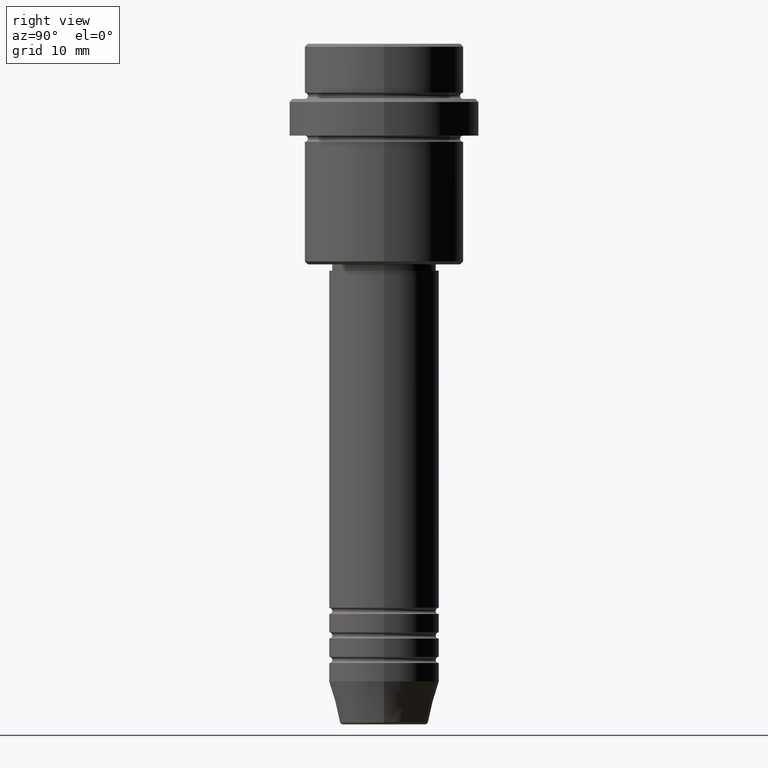
[diagram: clean part render]
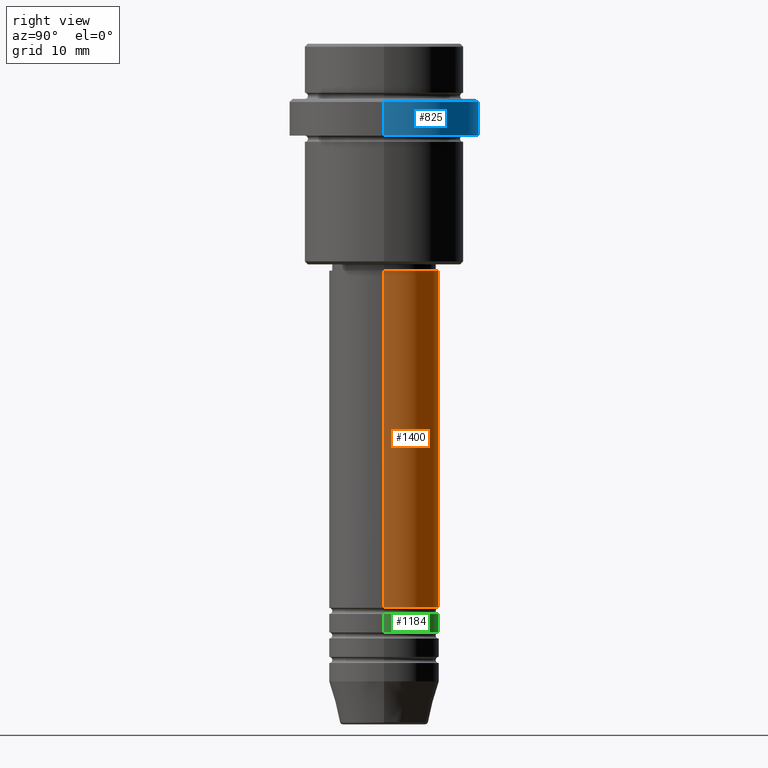
[diagram: same view with three faces highlighted in distinct colors, each labeled with its STEP entity id]
A machine part, right view with three faces highlighted in distinct colors.
Their STEP definitions:

[orange] entity #1400 — the highlighted cylindrical surface (partial cylindrical patch) has radius 9 mm, axis along (-0, -0, 1).
#36 = CARTESIAN_POINT ( 'NONE',  ( 9.000000000000000000, 0.000000000000000000, -91.99999999999988631 ) ) ;
#114 = CARTESIAN_POINT ( 'NONE',  ( 0.000000000000000000, 0.000000000000000000, 0.000000000000000000 ) ) ;
#141 = EDGE_LOOP ( 'NONE', ( #1359, #248, #1179, #1343 ) ) ;
#248 = ORIENTED_EDGE ( 'NONE', *, *, #983, .T. ) ;
#312 = DIRECTION ( 'NONE',  ( -0.000000000000000000, -0.000000000000000000, 1.000000000000000000 ) ) ;
#320 = LINE ( 'NONE', #1167, #969 ) ;
#516 = CYLINDRICAL_SURFACE ( 'NONE', #636, 9.000000000000001776 ) ;
#619 = FACE_OUTER_BOUND ( 'NONE', #141, .T. ) ;
#628 = DIRECTION ( 'NONE',  ( -0.000000000000000000, -0.000000000000000000, 1.000000000000000000 ) ) ;
#636 = AXIS2_PLACEMENT_3D ( 'NONE', #114, #312, #1194 ) ;
#734 = EDGE_CURVE ( 'NONE', #778, #1353, #1079, .T. ) ;
#737 = CARTESIAN_POINT ( 'NONE',  ( 0.000000000000000000, 0.000000000000000000, -37.00000000000002132 ) ) ;
#778 = VERTEX_POINT ( 'NONE', #36 ) ;
#790 = DIRECTION ( 'NONE',  ( 1.000000000000000000, 0.000000000000000000, 0.000000000000000000 ) ) ;
#794 = AXIS2_PLACEMENT_3D ( 'NONE', #737, #1171, #1414 ) ;
#805 = CARTESIAN_POINT ( 'NONE',  ( -9.000000000000001776, 1.102182119232617911E-15, -37.00000000000002132 ) ) ;
#892 = DIRECTION ( 'NONE',  ( -0.000000000000000000, -0.000000000000000000, 1.000000000000000000 ) ) ;
#896 = VERTEX_POINT ( 'NONE', #805 ) ;
#969 = VECTOR ( 'NONE', #628, 1000.000000000000000 ) ;
#983 = EDGE_CURVE ( 'NONE', #1353, #896, #1294, .T. ) ;
#1029 = EDGE_CURVE ( 'NONE', #1042, #896, #1412, .T. ) ;
#1031 = CARTESIAN_POINT ( 'NONE',  ( -9.000000000000000000, 1.102182119232617714E-15, -91.99999999999988631 ) ) ;
#1042 = VERTEX_POINT ( 'NONE', #1187 ) ;
#1068 = DIRECTION ( 'NONE',  ( -0.000000000000000000, -0.000000000000000000, 1.000000000000000000 ) ) ;
#1079 = CIRCLE ( 'NONE', #1276, 9.000000000000000000 ) ;
#1090 = CARTESIAN_POINT ( 'NONE',  ( 0.000000000000000000, 0.000000000000000000, -91.99999999999988631 ) ) ;
#1167 = CARTESIAN_POINT ( 'NONE',  ( 9.000000000000001776, 0.000000000000000000, 0.000000000000000000 ) ) ;
#1171 = DIRECTION ( 'NONE',  ( -0.000000000000000000, -0.000000000000000000, 1.000000000000000000 ) ) ;
#1179 = ORIENTED_EDGE ( 'NONE', *, *, #1029, .F. ) ;
#1180 = CARTESIAN_POINT ( 'NONE',  ( -9.000000000000001776, 1.102182119232617911E-15, 0.000000000000000000 ) ) ;
#1187 = CARTESIAN_POINT ( 'NONE',  ( 9.000000000000001776, 0.000000000000000000, -37.00000000000002132 ) ) ;
#1194 = DIRECTION ( 'NONE',  ( 1.000000000000000000, 0.000000000000000000, 0.000000000000000000 ) ) ;
#1276 = AXIS2_PLACEMENT_3D ( 'NONE', #1090, #892, #790 ) ;
#1294 = LINE ( 'NONE', #1180, #1348 ) ;
#1343 = ORIENTED_EDGE ( 'NONE', *, *, #1417, .F. ) ;
#1348 = VECTOR ( 'NONE', #1068, 1000.000000000000000 ) ;
#1353 = VERTEX_POINT ( 'NONE', #1031 ) ;
#1359 = ORIENTED_EDGE ( 'NONE', *, *, #734, .T. ) ;
#1400 = ADVANCED_FACE ( 'NONE', ( #619 ), #516, .T. ) ;
#1412 = CIRCLE ( 'NONE', #794, 9.000000000000001776 ) ;
#1414 = DIRECTION ( 'NONE',  ( 1.000000000000000000, 0.000000000000000000, 0.000000000000000000 ) ) ;
#1417 = EDGE_CURVE ( 'NONE', #778, #1042, #320, .T. ) ;

[blue] entity #825 — the highlighted cylindrical surface (partial cylindrical patch) has radius 15.5 mm, axis along (-0, -0, 1).
#123 = LINE ( 'NONE', #779, #505 ) ;
#148 = DIRECTION ( 'NONE',  ( -0.000000000000000000, -0.000000000000000000, 1.000000000000000000 ) ) ;
#202 = CIRCLE ( 'NONE', #1181, 15.50000000000000000 ) ;
#224 = CIRCLE ( 'NONE', #1303, 15.50000000000000000 ) ;
#233 = VERTEX_POINT ( 'NONE', #696 ) ;
#279 = DIRECTION ( 'NONE',  ( 0.000000000000000000, 0.000000000000000000, -1.000000000000000000 ) ) ;
#364 = FACE_OUTER_BOUND ( 'NONE', #1091, .T. ) ;
#371 = VERTEX_POINT ( 'NONE', #403 ) ;
#379 = CARTESIAN_POINT ( 'NONE',  ( 0.000000000000000000, 0.000000000000000000, -9.499999999999985789 ) ) ;
#403 = CARTESIAN_POINT ( 'NONE',  ( 15.50000000000000000, 0.000000000000000000, -9.499999999999985789 ) ) ;
#408 = ORIENTED_EDGE ( 'NONE', *, *, #1332, .T. ) ;
#409 = DIRECTION ( 'NONE',  ( 1.000000000000000000, 0.000000000000000000, 0.000000000000000000 ) ) ;
#411 = EDGE_CURVE ( 'NONE', #1320, #371, #549, .T. ) ;
#483 = CARTESIAN_POINT ( 'NONE',  ( 0.000000000000000000, 0.000000000000000000, 0.000000000000000000 ) ) ;
#500 = VECTOR ( 'NONE', #1185, 1000.000000000000000 ) ;
#505 = VECTOR ( 'NONE', #148, 1000.000000000000000 ) ;
#539 = CARTESIAN_POINT ( 'NONE',  ( 15.50000000000000000, 0.000000000000000000, 0.000000000000000000 ) ) ;
#549 = LINE ( 'NONE', #539, #500 ) ;
#583 = ORIENTED_EDGE ( 'NONE', *, *, #411, .F. ) ;
#600 = DIRECTION ( 'NONE',  ( 1.000000000000000000, 0.000000000000000000, 0.000000000000000000 ) ) ;
#645 = VERTEX_POINT ( 'NONE', #1218 ) ;
#688 = CYLINDRICAL_SURFACE ( 'NONE', #1393, 15.50000000000000000 ) ;
#696 = CARTESIAN_POINT ( 'NONE',  ( -15.50000000000000000, 1.898202538678397557E-15, -15.00000000000000178 ) ) ;
#731 = CARTESIAN_POINT ( 'NONE',  ( 15.50000000000000000, 0.000000000000000000, -15.00000000000000178 ) ) ;
#779 = CARTESIAN_POINT ( 'NONE',  ( -15.50000000000000000, 1.898202538678397557E-15, 0.000000000000000000 ) ) ;
#825 = ADVANCED_FACE ( 'NONE', ( #364 ), #688, .T. ) ;
#1036 = DIRECTION ( 'NONE',  ( -0.000000000000000000, -0.000000000000000000, 1.000000000000000000 ) ) ;
#1070 = EDGE_CURVE ( 'NONE', #233, #645, #123, .T. ) ;
#1091 = EDGE_LOOP ( 'NONE', ( #408, #1145, #1278, #583 ) ) ;
#1113 = DIRECTION ( 'NONE',  ( -0.000000000000000000, -0.000000000000000000, 1.000000000000000000 ) ) ;
#1145 = ORIENTED_EDGE ( 'NONE', *, *, #1070, .T. ) ;
#1162 = CARTESIAN_POINT ( 'NONE',  ( 0.000000000000000000, 0.000000000000000000, -15.00000000000000178 ) ) ;
#1181 = AXIS2_PLACEMENT_3D ( 'NONE', #379, #279, #600 ) ;
#1185 = DIRECTION ( 'NONE',  ( -0.000000000000000000, -0.000000000000000000, 1.000000000000000000 ) ) ;
#1218 = CARTESIAN_POINT ( 'NONE',  ( -15.50000000000000000, 1.898202538678397557E-15, -9.499999999999985789 ) ) ;
#1265 = EDGE_CURVE ( 'NONE', #645, #371, #202, .T. ) ;
#1278 = ORIENTED_EDGE ( 'NONE', *, *, #1265, .T. ) ;
#1303 = AXIS2_PLACEMENT_3D ( 'NONE', #1162, #1036, #1366 ) ;
#1320 = VERTEX_POINT ( 'NONE', #731 ) ;
#1332 = EDGE_CURVE ( 'NONE', #1320, #233, #224, .T. ) ;
#1366 = DIRECTION ( 'NONE',  ( 1.000000000000000000, 0.000000000000000000, 0.000000000000000000 ) ) ;
#1393 = AXIS2_PLACEMENT_3D ( 'NONE', #483, #1113, #409 ) ;

[green] entity #1184 — the highlighted cylindrical surface (partial cylindrical patch) has radius 9 mm, axis along (-0, -0, 1).
#159 = VERTEX_POINT ( 'NONE', #617 ) ;
#165 = DIRECTION ( 'NONE',  ( -0.000000000000000000, -0.000000000000000000, 1.000000000000000000 ) ) ;
#238 = EDGE_LOOP ( 'NONE', ( #437, #670, #1401, #714 ) ) ;
#244 = CIRCLE ( 'NONE', #443, 9.000000000000000000 ) ;
#257 = CARTESIAN_POINT ( 'NONE',  ( -9.000000000000000000, 1.102182119232617714E-15, 0.000000000000000000 ) ) ;
#317 = EDGE_CURVE ( 'NONE', #159, #886, #244, .T. ) ;
#337 = VECTOR ( 'NONE', #625, 1000.000000000000000 ) ;
#341 = CYLINDRICAL_SURFACE ( 'NONE', #1374, 9.000000000000000000 ) ;
#369 = CARTESIAN_POINT ( 'NONE',  ( -9.000000000000000000, 1.102182119232617714E-15, -92.99999999999988631 ) ) ;
#386 = AXIS2_PLACEMENT_3D ( 'NONE', #823, #165, #1135 ) ;
#437 = ORIENTED_EDGE ( 'NONE', *, *, #1251, .T. ) ;
#443 = AXIS2_PLACEMENT_3D ( 'NONE', #463, #484, #1246 ) ;
#463 = CARTESIAN_POINT ( 'NONE',  ( 0.000000000000000000, 0.000000000000000000, -92.99999999999988631 ) ) ;
#467 = CARTESIAN_POINT ( 'NONE',  ( -9.000000000000000000, 1.102182119232617714E-15, -95.99999999999988631 ) ) ;
#484 = DIRECTION ( 'NONE',  ( -0.000000000000000000, -0.000000000000000000, 1.000000000000000000 ) ) ;
#497 = VERTEX_POINT ( 'NONE', #467 ) ;
#570 = CARTESIAN_POINT ( 'NONE',  ( 0.000000000000000000, 0.000000000000000000, 0.000000000000000000 ) ) ;
#617 = CARTESIAN_POINT ( 'NONE',  ( 9.000000000000000000, 0.000000000000000000, -92.99999999999988631 ) ) ;
#625 = DIRECTION ( 'NONE',  ( -0.000000000000000000, -0.000000000000000000, 1.000000000000000000 ) ) ;
#670 = ORIENTED_EDGE ( 'NONE', *, *, #821, .T. ) ;
#714 = ORIENTED_EDGE ( 'NONE', *, *, #1312, .F. ) ;
#721 = LINE ( 'NONE', #832, #1227 ) ;
#774 = DIRECTION ( 'NONE',  ( -0.000000000000000000, -0.000000000000000000, 1.000000000000000000 ) ) ;
#804 = FACE_OUTER_BOUND ( 'NONE', #238, .T. ) ;
#821 = EDGE_CURVE ( 'NONE', #497, #886, #952, .T. ) ;
#823 = CARTESIAN_POINT ( 'NONE',  ( 0.000000000000000000, 0.000000000000000000, -95.99999999999988631 ) ) ;
#832 = CARTESIAN_POINT ( 'NONE',  ( 9.000000000000000000, 0.000000000000000000, 0.000000000000000000 ) ) ;
#886 = VERTEX_POINT ( 'NONE', #369 ) ;
#943 = CARTESIAN_POINT ( 'NONE',  ( 9.000000000000000000, 0.000000000000000000, -95.99999999999988631 ) ) ;
#952 = LINE ( 'NONE', #257, #337 ) ;
#995 = DIRECTION ( 'NONE',  ( 1.000000000000000000, 0.000000000000000000, 0.000000000000000000 ) ) ;
#1082 = CIRCLE ( 'NONE', #386, 9.000000000000000000 ) ;
#1135 = DIRECTION ( 'NONE',  ( 1.000000000000000000, 0.000000000000000000, 0.000000000000000000 ) ) ;
#1184 = ADVANCED_FACE ( 'NONE', ( #804 ), #341, .T. ) ;
#1227 = VECTOR ( 'NONE', #1279, 1000.000000000000000 ) ;
#1246 = DIRECTION ( 'NONE',  ( 1.000000000000000000, 0.000000000000000000, 0.000000000000000000 ) ) ;
#1248 = VERTEX_POINT ( 'NONE', #943 ) ;
#1251 = EDGE_CURVE ( 'NONE', #1248, #497, #1082, .T. ) ;
#1279 = DIRECTION ( 'NONE',  ( -0.000000000000000000, -0.000000000000000000, 1.000000000000000000 ) ) ;
#1312 = EDGE_CURVE ( 'NONE', #1248, #159, #721, .T. ) ;
#1374 = AXIS2_PLACEMENT_3D ( 'NONE', #570, #774, #995 ) ;
#1401 = ORIENTED_EDGE ( 'NONE', *, *, #317, .F. ) ;